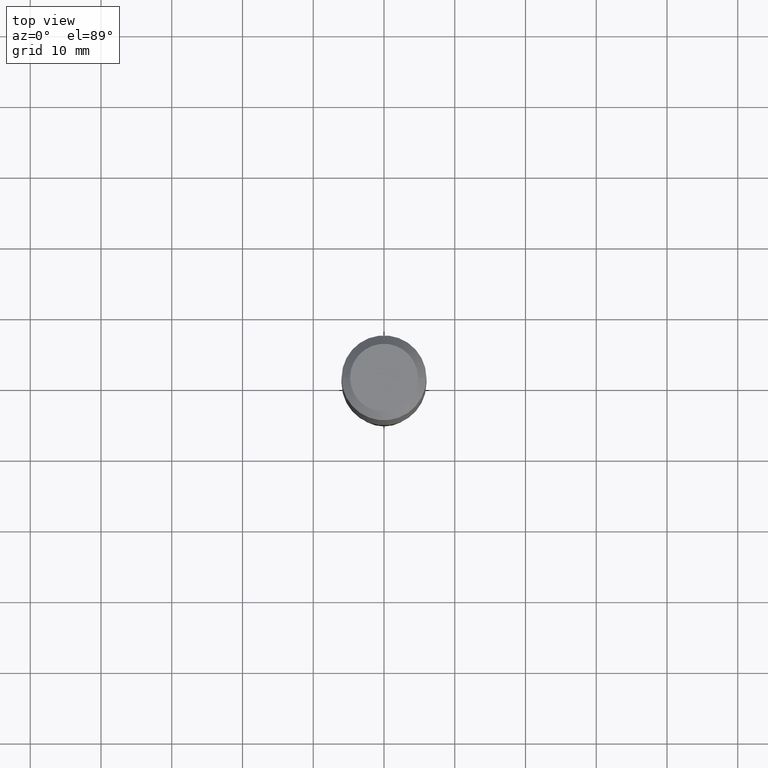
[diagram: clean part render]
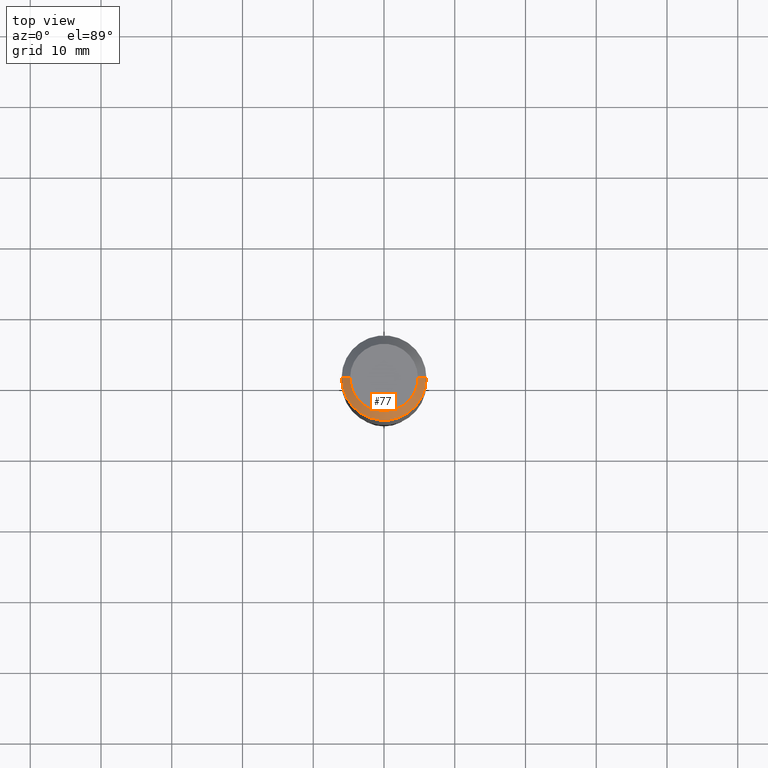
[diagram: same view with one face highlighted and labeled with its STEP entity id]
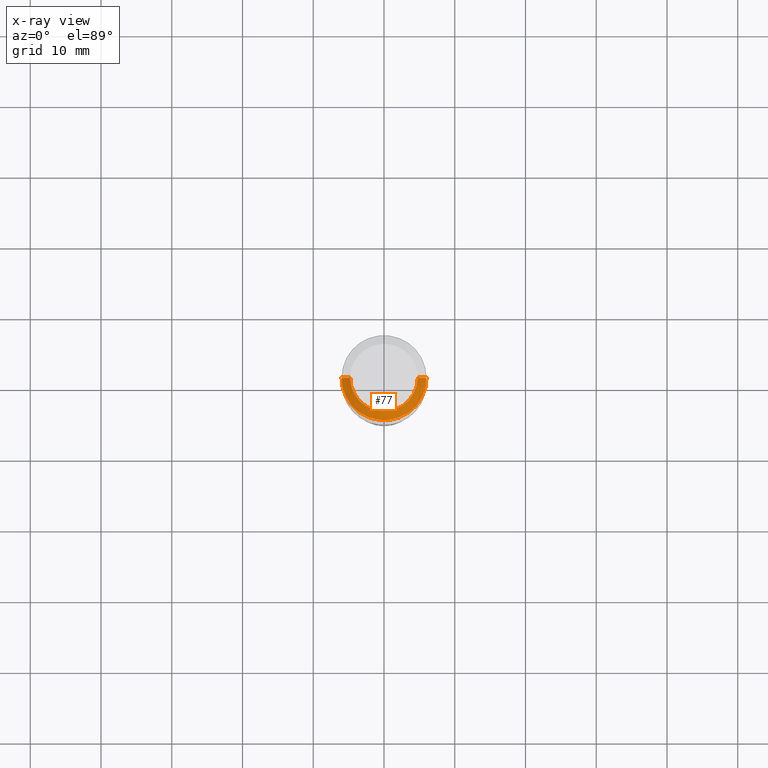
[diagram: x-ray of the same camera — body ghosted, the highlighted face saturated]
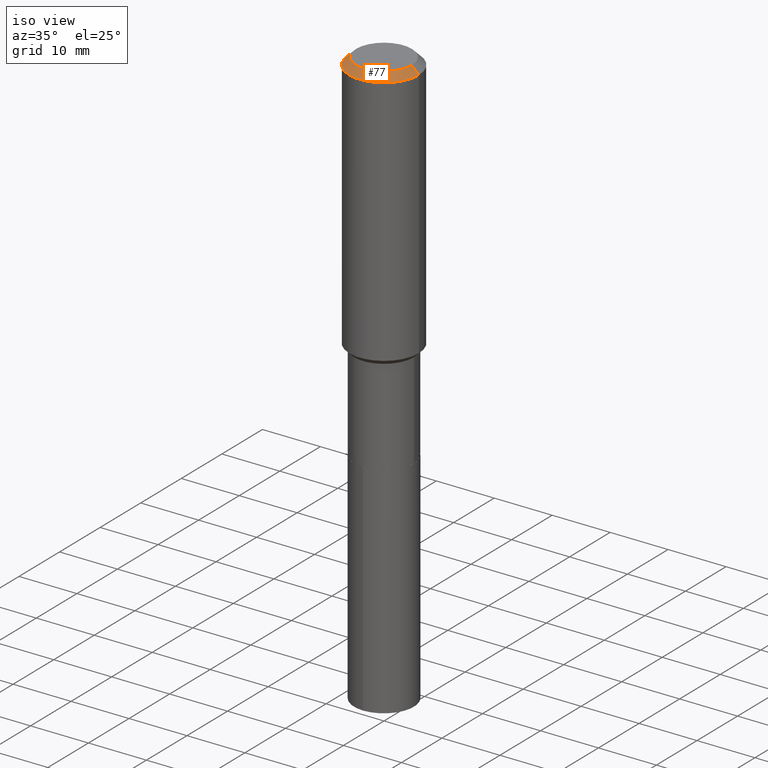
[diagram: same view with one face highlighted and labeled with its STEP entity id]
A machine part, top view. The second image highlights one B-rep face of the part: STEP entity #77.
The next image is the same camera in x-ray: the body ghosted, the highlighted face saturated — about 0% of this face is hidden behind the body in this view.
A second angle (iso view) of the same face is appended — the face is thin or edge-on in the first view.
In plain terms, the highlighted conical surface has half-angle 45 deg.
Its self-contained STEP definition (entity closure, byte-faithful):
#14 = ORIENTED_EDGE ( 'NONE', *, *, #303, .F. ) ;
#17 = VERTEX_POINT ( 'NONE', #235 ) ;
#20 = CARTESIAN_POINT ( 'NONE',  ( 1.155239464041865506E-30, -1.649375784469511859E-16, -0.04724000000000028177 ) ) ;
#31 = EDGE_CURVE ( 'NONE', #262, #224, #364, .T. ) ;
#55 = DIRECTION ( 'NONE',  ( -1.000000000000000000, 6.982962677686266711E-15, 0.000000000000000000 ) ) ;
#64 = CARTESIAN_POINT ( 'NONE',  ( -0.1889600000000000168, 1.401969416799070942E-15, 3.855188123706346622E-18 ) ) ;
#65 = VECTOR ( 'NONE', #481, 39.37007874015748143 ) ;
#73 = AXIS2_PLACEMENT_3D ( 'NONE', #108, #327, #451 ) ;
#77 = ADVANCED_FACE ( 'NONE', ( #272 ), #123, .T. ) ;
#88 = ORIENTED_EDGE ( 'NONE', *, *, #31, .T. ) ;
#99 = CARTESIAN_POINT ( 'NONE',  ( 0.2361999999999999933, -1.785387205520586782E-15, -0.04724000000000028177 ) ) ;
#103 = LINE ( 'NONE', #450, #478 ) ;
#108 = CARTESIAN_POINT ( 'NONE',  ( -9.427742298522546243E-47, 1.346031739168365344E-32, 3.855188123715862256E-18 ) ) ;
#121 = ORIENTED_EDGE ( 'NONE', *, *, #286, .T. ) ;
#123 = CONICAL_SURFACE ( 'NONE', #184, 0.2361999999999999933, 0.7853981633974452814 ) ;
#149 = EDGE_LOOP ( 'NONE', ( #421, #14, #121, #88 ) ) ;
#160 = LINE ( 'NONE', #99, #65 ) ;
#167 = CARTESIAN_POINT ( 'NONE',  ( 1.155239464041865506E-30, -1.649375784469511859E-16, -0.04724000000000028177 ) ) ;
#184 = AXIS2_PLACEMENT_3D ( 'NONE', #20, #210, #55 ) ;
#210 = DIRECTION ( 'NONE',  ( 2.445468806185136597E-29, -3.491481338843145583E-15, -1.000000000000000000 ) ) ;
#220 = AXIS2_PLACEMENT_3D ( 'NONE', #167, #314, #476 ) ;
#224 = VERTEX_POINT ( 'NONE', #368 ) ;
#235 = CARTESIAN_POINT ( 'NONE',  ( 0.1889600000000000168, -1.540873453589747738E-15, 3.855188123725863225E-18 ) ) ;
#262 = VERTEX_POINT ( 'NONE', #410 ) ;
#272 = FACE_OUTER_BOUND ( 'NONE', #149, .T. ) ;
#286 = EDGE_CURVE ( 'NONE', #490, #262, #103, .T. ) ;
#288 = DIRECTION ( 'NONE',  ( -0.7071067811865453523, 2.468850131082234184E-15, -0.7071067811865496822 ) ) ;
#303 = EDGE_CURVE ( 'NONE', #490, #17, #444, .T. ) ;
#314 = DIRECTION ( 'NONE',  ( -2.445468806185136597E-29, 3.491481338843145583E-15, 1.000000000000000000 ) ) ;
#327 = DIRECTION ( 'NONE',  ( -2.445468806185136597E-29, 3.491481338843145583E-15, 1.000000000000000000 ) ) ;
#364 = CIRCLE ( 'NONE', #220, 0.2361999999999999933 ) ;
#368 = CARTESIAN_POINT ( 'NONE',  ( 0.2361999999999999933, -1.814313362916447440E-15, -0.04724000000000028177 ) ) ;
#410 = CARTESIAN_POINT ( 'NONE',  ( -0.2361999999999999933, -1.469774749895871101E-15, -0.04724000000000028177 ) ) ;
#421 = ORIENTED_EDGE ( 'NONE', *, *, #484, .F. ) ;
#444 = CIRCLE ( 'NONE', #73, 0.1889600000000000168 ) ;
#450 = CARTESIAN_POINT ( 'NONE',  ( -0.2361999999999999933, 1.484438206022545019E-15, -0.04724000000000028177 ) ) ;
#451 = DIRECTION ( 'NONE',  ( 1.000000000000000000, -6.982962677686266711E-15, 4.876185090822587894E-29 ) ) ;
#476 = DIRECTION ( 'NONE',  ( 1.000000000000000000, -6.982962677686266711E-15, 0.000000000000000000 ) ) ;
#478 = VECTOR ( 'NONE', #288, 39.37007874015748143 ) ;
#481 = DIRECTION ( 'NONE',  ( 0.7071067811865453523, -7.319954787623248157E-15, -0.7071067811865496822 ) ) ;
#484 = EDGE_CURVE ( 'NONE', #17, #224, #160, .T. ) ;
#490 = VERTEX_POINT ( 'NONE', #64 ) ;